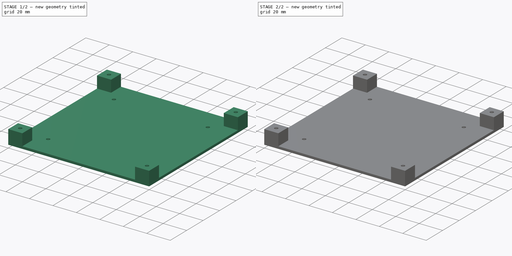
[diagram: build sequence overview — one tinted view per stage of 2, left to right]
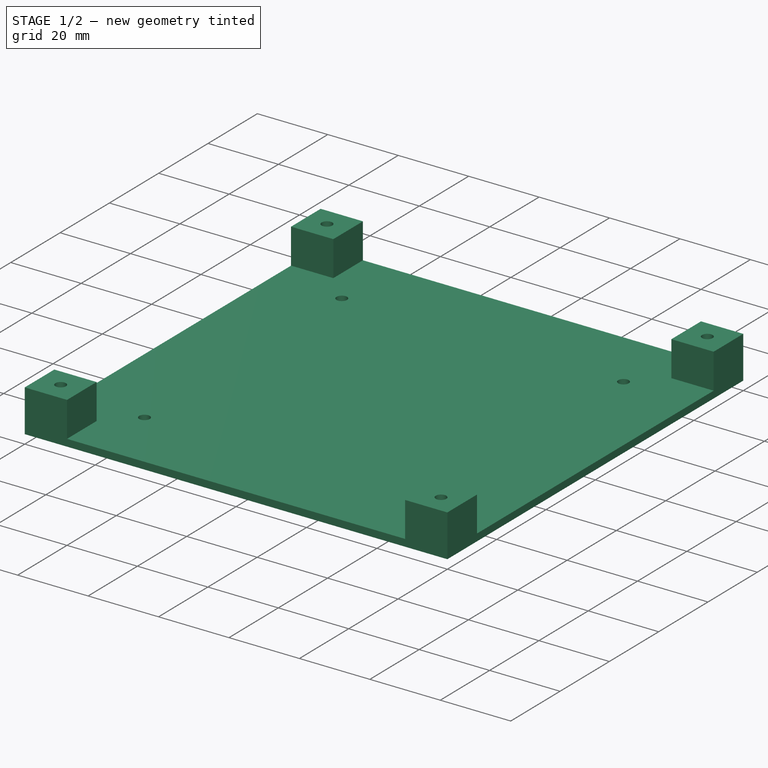
[diagram: stage 1 of 2 — iso view after this stage's code; geometry added in this stage tinted green]
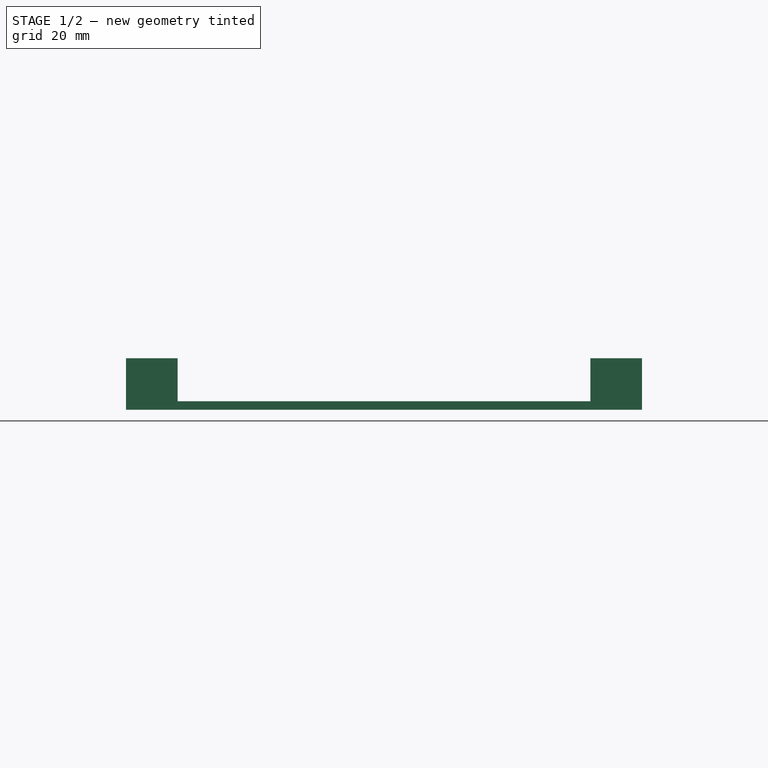
[diagram: stage 1 of 2 — front view after this stage's code; geometry added in this stage tinted green]
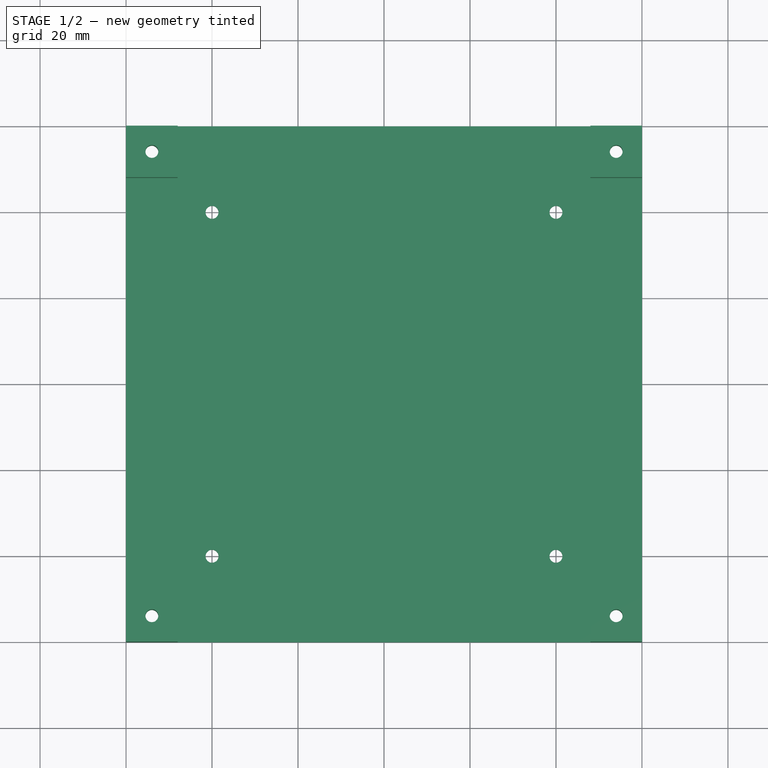
[diagram: stage 1 of 2 — top view after this stage's code; geometry added in this stage tinted green]
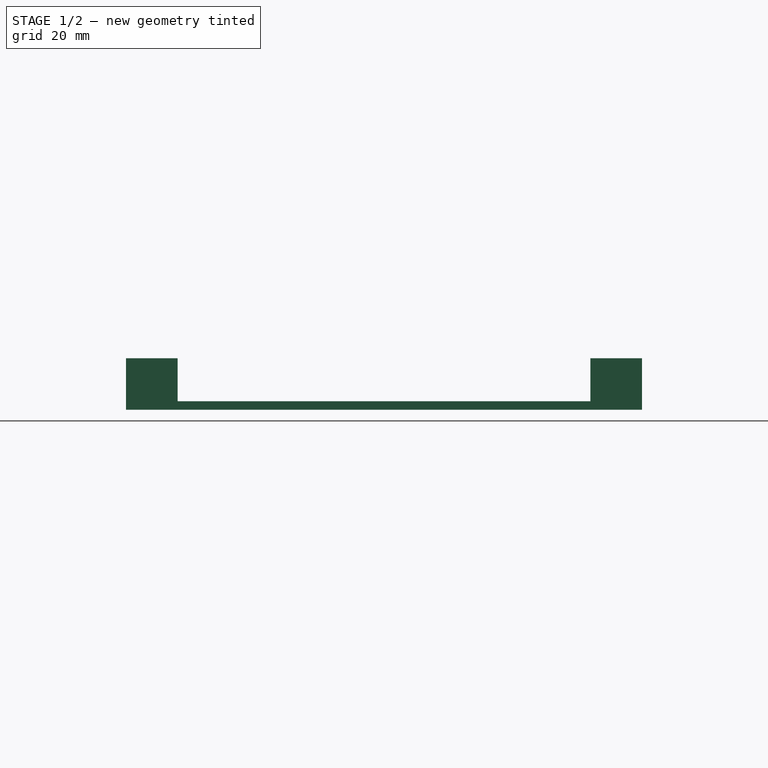
[diagram: stage 1 of 2 — right view after this stage's code; geometry added in this stage tinted green]
FCSTD DOCUMENT  (FreeCAD 0.21R33771 (Git))
Label: holder_120mm
License: All rights reserved
LicenseURL: http://en.wikipedia.org/wiki/All_rights_reserved
objects: Sketcher::SketchObject×3, PartDesign::Pad×2, PartDesign::Pocket×1, PartDesign::Body×1
note: 10 computed .brp shape members not serialized (recipe doc carries the construction recipe); baked Part::Feature solids carry a one-line shape summary decoded from their .brp

FEATURE [Sketcher::SketchObject] Sketch
  FullyConstrained = true
  MapMode = 5
  Support = -> [XY_Plane]
  sketch-geometry (13):
    g0: LineSegment StartX=-60 StartY=-60 StartZ=0 EndX=-60 EndY=60 EndZ=0
    g1: LineSegment StartX=-60 StartY=60 StartZ=0 EndX=60 EndY=60 EndZ=0
    g2: LineSegment StartX=60 StartY=60 StartZ=0 EndX=60 EndY=-60 EndZ=0
    g3: LineSegment StartX=60 StartY=-60 StartZ=0 EndX=-60 EndY=-60 EndZ=0
    g4: GeomPoint X=0 Y=0 Z=0
    g5: Circle CenterX=-40 CenterY=40 CenterZ=0 NormalX=0 NormalY=0 NormalZ=1 AngleXU=0 Radius=1.5
    g6: Circle CenterX=40 CenterY=40 CenterZ=0 NormalX=0 NormalY=0 NormalZ=1 AngleXU=0 Radius=1.5
    g7: Circle CenterX=40 CenterY=-40 CenterZ=0 NormalX=0 NormalY=0 NormalZ=1 AngleXU=0 Radius=1.5
    g8: Circle CenterX=-40 CenterY=-40 CenterZ=0 NormalX=0 NormalY=0 NormalZ=1 AngleXU=0 Radius=1.5
    g9: Circle CenterX=-54 CenterY=54 CenterZ=0 NormalX=0 NormalY=0 NormalZ=1 AngleXU=0 Radius=1.5
    g10: Circle CenterX=54 CenterY=54 CenterZ=0 NormalX=0 NormalY=0 NormalZ=1 AngleXU=0 Radius=1.5
    g11: Circle CenterX=54 CenterY=-54 CenterZ=0 NormalX=0 NormalY=0 NormalZ=1 AngleXU=0 Radius=1.5
    g12: Circle CenterX=-54 CenterY=-54 CenterZ=0 NormalX=0 NormalY=0 NormalZ=1 AngleXU=0 Radius=1.5
  constraints (36):
    c: Coincident(g0,g1)
    c: Coincident(g1,g2)
    c: Coincident(g2,g3)
    c: Coincident(g3,g0)
    c: Horizontal(g1)
    c: Horizontal(g3)
    c: Vertical(g0)
    c: Vertical(g2)
    c: Symmetric(g1,g0,g4)
    c: Coincident(g4,g-1)
    c: DistanceX(g1,g1) = 120
    c: DistanceY(g2,g2) = 120
    c: Diameter(g5) = 3
    c: Diameter(g6) = 3
    c: Diameter(g7) = 3
    c: Diameter(g8) = 3
    c: Distance(g8,g-2) = 40
    c: Distance(g5,g-2) = 40
    c: Distance(g6,g-2) = 40
    c: Distance(g7,g-2) = 40
    c: Distance(g7,g-1) = 40
    c: Distance(g6,g-1) = 40
    c: Distance(g5,g-1) = 40
    c: Distance(g8,g-1) = 40
    c: Diameter(g9) = 3
    c: Diameter(g10) = 3
    c: Diameter(g12) = 3
    c: Diameter(g11) = 3
    c: Distance(g9,g-1) = 54
    c: Distance(g9,g-2) = 54
    c: Distance(g10,g-1) = 54
    c: Distance(g10,g-2) = 54
    c: Distance(g11,g-1) = 54
    c: Distance(g11,g-2) = 54
    c: Distance(g12,g0) = 6
    c: Distance(g12,g3) = 6
FEATURE [PartDesign::Pad] Pad
  Direction = (0,0,1)
  Length = 2
  Length2 = 10
  Profile = -> Sketch
  ReferenceAxis = -> Sketch [N_Axis]
  Refine = true
  Type = 0
FEATURE [Sketcher::SketchObject] Sketch001
  FullyConstrained = true
  MapMode = 5
  Support = -> [XY_Plane]
  sketch-geometry (28):
    g0: LineSegment StartX=-52.375 StartY=51.1854 StartZ=0 EndX=-50.75 EndY=54 EndZ=0
    g1: LineSegment StartX=-50.75 StartY=54 StartZ=0 EndX=-52.375 EndY=56.8146 EndZ=0
    g2: LineSegment StartX=-52.375 StartY=56.8146 StartZ=0 EndX=-55.625 EndY=56.8146 EndZ=0
    g3: LineSegment StartX=-55.625 StartY=56.8146 StartZ=0 EndX=-57.25 EndY=54 EndZ=0
    g4: LineSegment StartX=-57.25 StartY=54 StartZ=0 EndX=-55.625 EndY=51.1854 EndZ=0
    g5: LineSegment StartX=-55.625 StartY=51.1854 StartZ=0 EndX=-52.375 EndY=51.1854 EndZ=0
    g6: Circle CenterX=-54 CenterY=54 CenterZ=0 NormalX=0 NormalY=0 NormalZ=1 AngleXU=0 Radius=3.25
    g7: LineSegment StartX=57.25 StartY=54 StartZ=0 EndX=55.625 EndY=56.8146 EndZ=0
    g8: LineSegment StartX=55.625 StartY=56.8146 StartZ=0 EndX=52.375 EndY=56.8146 EndZ=0
    g9: LineSegment StartX=52.375 StartY=56.8146 StartZ=0 EndX=50.75 EndY=54 EndZ=0
    g10: LineSegment StartX=50.75 StartY=54 StartZ=0 EndX=52.375 EndY=51.1854 EndZ=0
    g11: LineSegment StartX=52.375 StartY=51.1854 StartZ=0 EndX=55.625 EndY=51.1854 EndZ=0
    g12: LineSegment StartX=55.625 StartY=51.1854 StartZ=0 EndX=57.25 EndY=54 EndZ=0
    g13: Circle CenterX=54 CenterY=54 CenterZ=0 NormalX=0 NormalY=0 NormalZ=1 AngleXU=0 Radius=3.25
    g14: LineSegment StartX=-50.75 StartY=-54 StartZ=0 EndX=-52.375 EndY=-51.1854 EndZ=0
    g15: LineSegment StartX=-52.375 StartY=-51.1854 StartZ=0 EndX=-55.625 EndY=-51.1854 EndZ=0
    g16: LineSegment StartX=-55.625 StartY=-51.1854 StartZ=0 EndX=-57.25 EndY=-54 EndZ=0
    g17: LineSegment StartX=-57.25 StartY=-54 StartZ=0 EndX=-55.625 EndY=-56.8146 EndZ=0
    g18: LineSegment StartX=-55.625 StartY=-56.8146 StartZ=0 EndX=-52.375 EndY=-56.8146 EndZ=0
    g19: LineSegment StartX=-52.375 StartY=-56.8146 StartZ=0 EndX=-50.75 EndY=-54 EndZ=0
    g20: Circle CenterX=-54 CenterY=-54 CenterZ=0 NormalX=0 NormalY=0 NormalZ=1 AngleXU=0 Radius=3.25
    g21: LineSegment StartX=57.25 StartY=-54 StartZ=0 EndX=55.625 EndY=-51.1854 EndZ=0
    g22: LineSegment StartX=55.625 StartY=-51.1854 StartZ=0 EndX=52.375 EndY=-51.1854 EndZ=0
    g23: LineSegment StartX=52.375 StartY=-51.1854 StartZ=0 EndX=50.75 EndY=-54 EndZ=0
    g24: LineSegment StartX=50.75 StartY=-54 StartZ=0 EndX=52.375 EndY=-56.8146 EndZ=0
    g25: LineSegment StartX=52.375 StartY=-56.8146 StartZ=0 EndX=55.625 EndY=-56.8146 EndZ=0
    g26: LineSegment StartX=55.625 StartY=-56.8146 StartZ=0 EndX=57.25 EndY=-54 EndZ=0
    g27: Circle CenterX=54 CenterY=-54 CenterZ=0 NormalX=0 NormalY=0 NormalZ=1 AngleXU=0 Radius=3.25
  constraints (68):
    c: Coincident(g0,g1)
    c: Coincident(g1,g2)
    c: Coincident(g2,g3)
    c: Coincident(g3,g4)
    c: Coincident(g4,g5)
    c: Coincident(g5,g0)
    c: Equal(g0, g1-g5) x5
    c: PointOnObject(g0,g6)
    c: PointOnObject(g1,g6)
    c: PointOnObject(g2,g6)
    c: PointOnObject(g3,g6)
    c: PointOnObject(g4,g6)
    c: PointOnObject(g5,g6)
    c: Coincident(g7,g8)
    c: Coincident(g8,g9)
    c: Coincident(g9,g10)
    c: Coincident(g10,g11)
    c: Coincident(g11,g12)
    c: Coincident(g12,g7)
    c: Equal(g7, g8-g12) x5
    c: PointOnObject(g7,g13)
    c: PointOnObject(g8,g13)
    c: PointOnObject(g9,g13)
    c: PointOnObject(g10,g13)
    c: PointOnObject(g11,g13)
    c: PointOnObject(g12,g13)
    c: Diameter(g13) = 6.5
    c: Diameter(g6) = 6.5
    c: Horizontal(g5)
    c: Horizontal(g11)
    c: Distance(g6,g-2) = 54
    c: Distance(g6,g-1) = 54
    c: Distance(g13,g-1) = 54
    c: Distance(g13,g-2) = 54
    c: Coincident(g14,g15)
    c: Coincident(g15,g16)
    c: Coincident(g16,g17)
    c: Coincident(g17,g18)
    c: Coincident(g18,g19)
    c: Coincident(g19,g14)
    c: Equal(g14, g15-g19) x5
    c: PointOnObject(g14,g20)
    c: PointOnObject(g15,g20)
    c: PointOnObject(g16,g20)
    c: PointOnObject(g17,g20)
    c: PointOnObject(g18,g20)
    c: PointOnObject(g19,g20)
    c: Coincident(g21,g22)
    c: Coincident(g22,g23)
    c: Coincident(g23,g24)
    c: Coincident(g24,g25)
    c: Coincident(g25,g26)
    c: Coincident(g26,g21)
    c: Equal(g21, g22-g26) x5
    c: PointOnObject(g21,g27)
    c: PointOnObject(g22,g27)
    c: PointOnObject(g23,g27)
    c: PointOnObject(g24,g27)
    c: PointOnObject(g25,g27)
    c: PointOnObject(g26,g27)
    c: Diameter(g20) = 6.5
    c: Diameter(g27) = 6.5
    c: Horizontal(g18)
    c: Horizontal(g25)
    c: Distance(g27,g-2) = 54
    c: Distance(g27,g-1) = 54
    c: Distance(g20,g-2) = 54
    c: Distance(g20,g-1) = 54
FEATURE [Sketcher::SketchObject] Sketch002
  FullyConstrained = true
  MapMode = 5
  Support = -> [XY_Plane]
  sketch-geometry (24):
    g0: Circle CenterX=-54 CenterY=54 CenterZ=0 NormalX=0 NormalY=0 NormalZ=1 AngleXU=0 Radius=1.5
    g1: Circle CenterX=54 CenterY=54 CenterZ=0 NormalX=0 NormalY=0 NormalZ=1 AngleXU=0 Radius=1.5
    g2: Circle CenterX=54 CenterY=-54 CenterZ=0 NormalX=0 NormalY=0 NormalZ=1 AngleXU=0 Radius=1.5
    g3: Circle CenterX=-54 CenterY=-54 CenterZ=0 NormalX=0 NormalY=0 NormalZ=1 AngleXU=0 Radius=1.5
    g4: LineSegment StartX=-60 StartY=-60 StartZ=0 EndX=-60 EndY=-48 EndZ=0
    g5: LineSegment StartX=-60 StartY=-48 StartZ=0 EndX=-48 EndY=-48 EndZ=0
    g6: LineSegment StartX=-48 StartY=-48 StartZ=0 EndX=-48 EndY=-60 EndZ=0
    g7: LineSegment StartX=-48 StartY=-60 StartZ=0 EndX=-60 EndY=-60 EndZ=0
    g8: GeomPoint X=-54 Y=-54 Z=0
    g9: LineSegment StartX=48 StartY=-60 StartZ=0 EndX=48 EndY=-48 EndZ=0
    g10: LineSegment StartX=48 StartY=-48 StartZ=0 EndX=60 EndY=-48 EndZ=0
    g11: LineSegment StartX=60 StartY=-48 StartZ=0 EndX=60 EndY=-60 EndZ=0
    g12: LineSegment StartX=60 StartY=-60 StartZ=0 EndX=48 EndY=-60 EndZ=0
    g13: GeomPoint X=54 Y=-54 Z=0
    g14: LineSegment StartX=48 StartY=48 StartZ=0 EndX=48 EndY=60 EndZ=0
    g15: LineSegment StartX=48 StartY=60 StartZ=0 EndX=60 EndY=60 EndZ=0
    g16: LineSegment StartX=60 StartY=60 StartZ=0 EndX=60 EndY=48 EndZ=0
    g17: LineSegment StartX=60 StartY=48 StartZ=0 EndX=48 EndY=48 EndZ=0
    g18: GeomPoint X=54 Y=54 Z=0
    g19: LineSegment StartX=-60 StartY=48 StartZ=0 EndX=-60 EndY=60 EndZ=0
    g20: LineSegment StartX=-60 StartY=60 StartZ=0 EndX=-48 EndY=60 EndZ=0
    g21: LineSegment StartX=-48 StartY=60 StartZ=0 EndX=-48 EndY=48 EndZ=0
    g22: LineSegment StartX=-48 StartY=48 StartZ=0 EndX=-60 EndY=48 EndZ=0
    g23: GeomPoint X=-54 Y=54 Z=0
  constraints (60):
    c: Diameter(g0) = 3
    c: Diameter(g1) = 3
    c: Diameter(g2) = 3
    c: Diameter(g3) = 3
    c: Distance(g3,g-1) = 54
    c: Distance(g3,g-2) = 54
    c: Distance(g2,g-1) = 54
    c: Distance(g2,g-2) = 54
    c: Distance(g1,g-1) = 54
    c: Distance(g0,g-1) = 54
    c: Distance(g0,g-2) = 54
    c: Distance(g1,g-2) = 54
    c: Coincident(g4,g5)
    c: Coincident(g5,g6)
    c: Coincident(g6,g7)
    c: Coincident(g7,g4)
    c: Horizontal(g5)
    c: Horizontal(g7)
    c: Vertical(g4)
    c: Vertical(g6)
    c: Symmetric(g5,g4,g8)
    c: Coincident(g8,g3)
    c: Coincident(g9,g10)
    c: Coincident(g10,g11)
    c: Coincident(g11,g12)
    c: Coincident(g12,g9)
    c: Horizontal(g10)
    c: Horizontal(g12)
    c: Vertical(g9)
    c: Vertical(g11)
    c: Symmetric(g10,g9,g13)
    c: Coincident(g13,g2)
    c: Coincident(g14,g15)
    c: Coincident(g15,g16)
    c: Coincident(g16,g17)
    c: Coincident(g17,g14)
    c: Horizontal(g15)
    c: Horizontal(g17)
    c: Vertical(g14)
    c: Vertical(g16)
    c: Symmetric(g15,g14,g18)
    c: Coincident(g18,g1)
    c: Coincident(g19,g20)
    c: Coincident(g20,g21)
    c: Coincident(g21,g22)
    c: Coincident(g22,g19)
    c: Horizontal(g20)
    c: Horizontal(g22)
    c: Vertical(g19)
    c: Vertical(g21)
    c: Symmetric(g20,g19,g23)
    c: Coincident(g23,g0)
    c: DistanceX(g20,g20) = 12
    c: DistanceX(g10,g10) = 12
    c: DistanceY(g11,g11) = 12
    c: DistanceY(g6,g6) = 12
    c: DistanceY(g21,g21) = 12
    c: DistanceY(g14,g14) = 12
    c: DistanceX(g15,g15) = 12
    c: DistanceX(g7,g7) = 12
FEATURE [PartDesign::Pad] Pad001
  BaseFeature = -> Pad
  Direction = (0,0,1)
  Length = 12
  Length2 = 10
  Profile = -> Sketch002
  ReferenceAxis = -> Sketch002 [N_Axis]
  Refine = true
  Type = 0
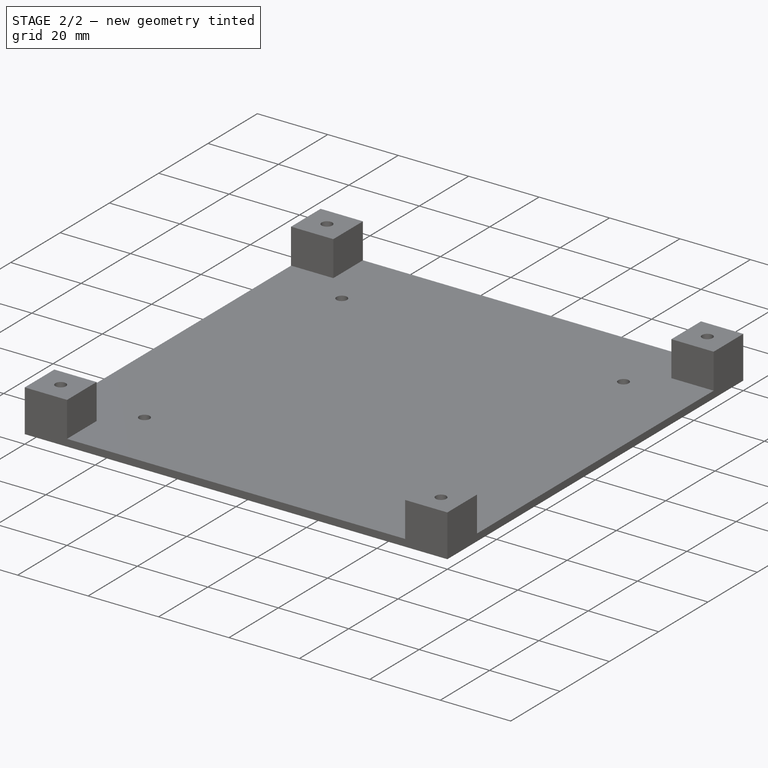
[diagram: stage 2 of 2 — iso view after this stage's code; geometry added in this stage tinted green]
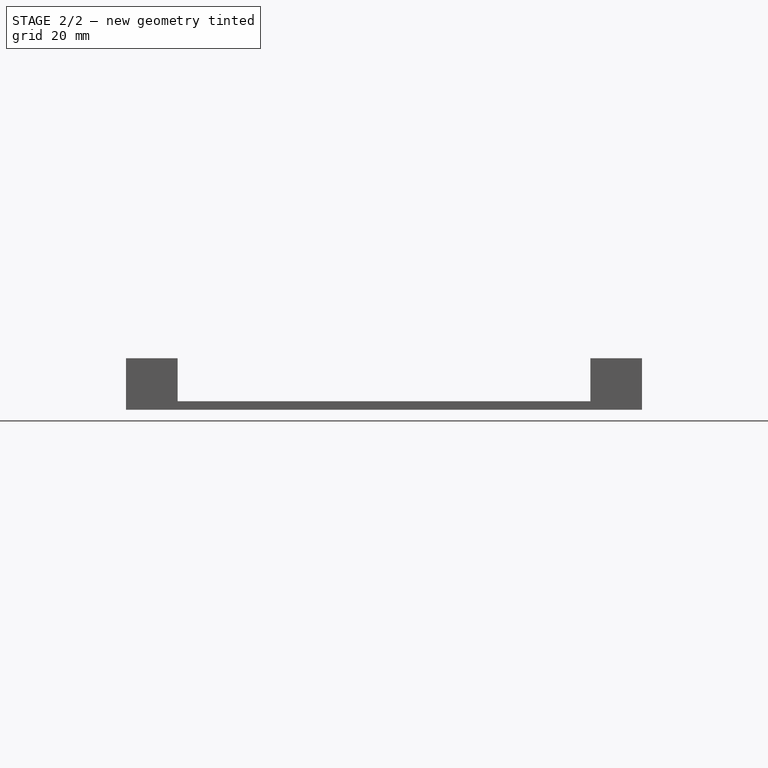
[diagram: stage 2 of 2 — front view after this stage's code; geometry added in this stage tinted green]
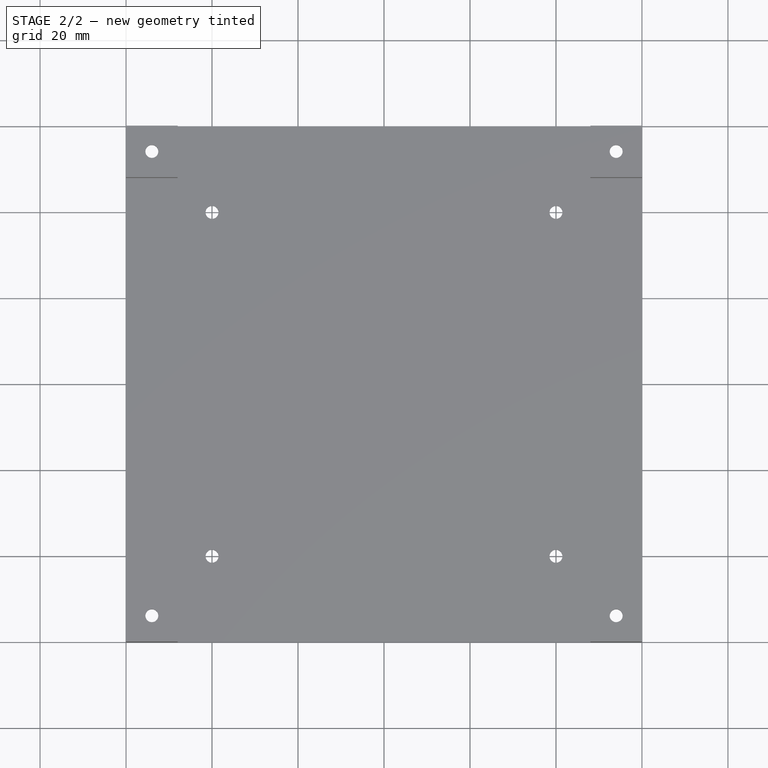
[diagram: stage 2 of 2 — top view after this stage's code; geometry added in this stage tinted green]
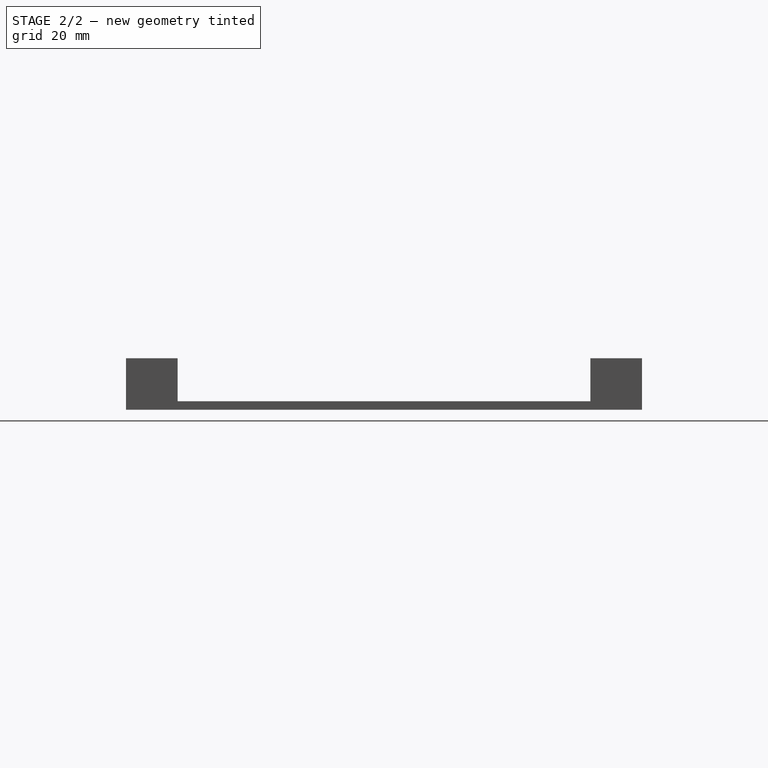
[diagram: stage 2 of 2 — right view after this stage's code; geometry added in this stage tinted green]
FEATURE [PartDesign::Pocket] Pocket
  BaseFeature = -> Pad001
  Direction = (0,0,-1)
  Length = 9
  Length2 = 5
  Profile = -> Sketch001
  ReferenceAxis = -> Sketch001 [N_Axis]
  Refine = true
  Reversed = true
  Type = 0
FEATURE [PartDesign::Body] Body
  Group = -> [Sketch,Pad,Sketch001,Sketch002,Pad001,Pocket]
  Origin = -> Origin
  Tip = -> Pocket
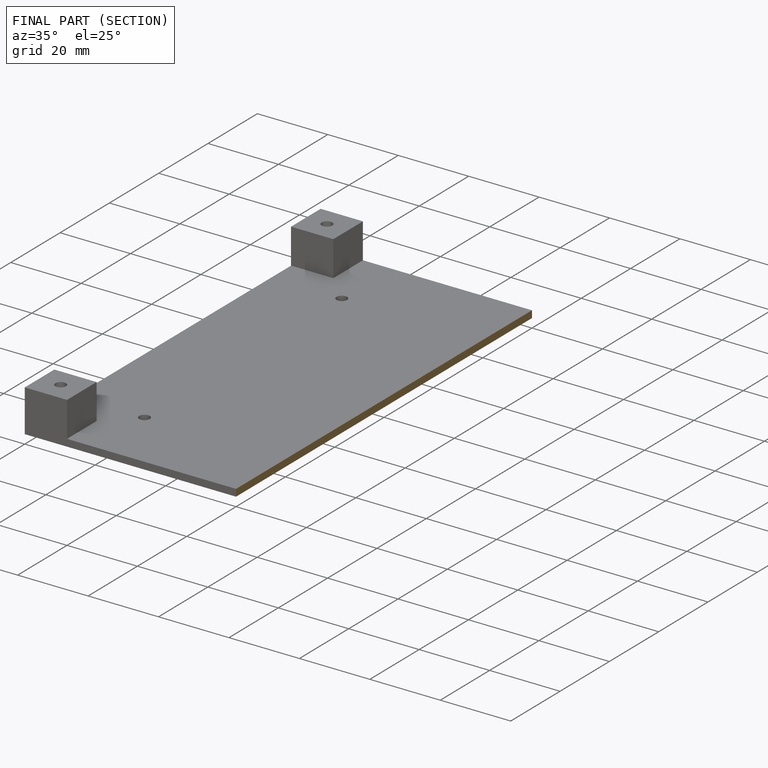
[diagram: finished part — half-section view (interior)]
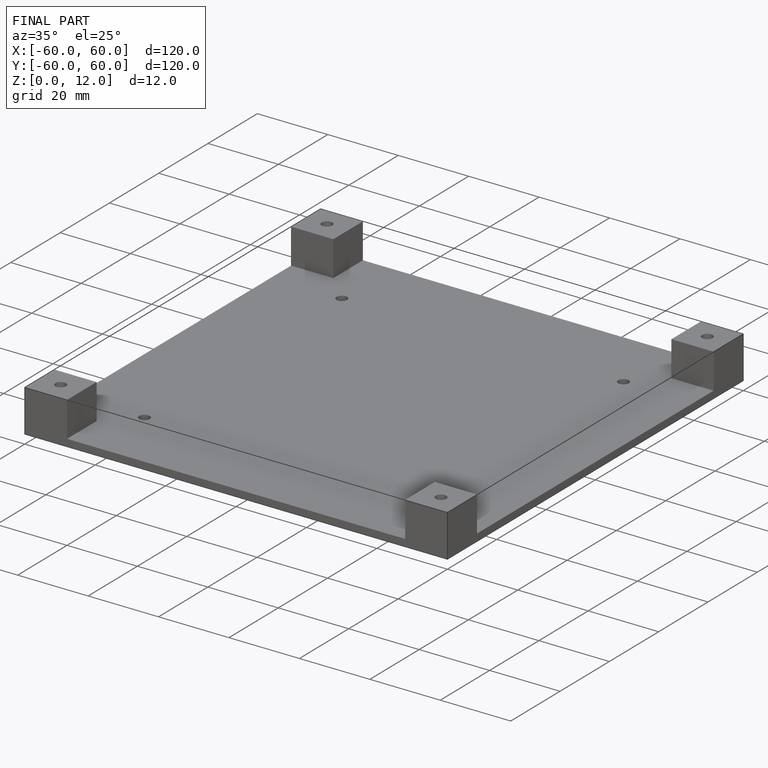
[diagram: finished part — iso view with bounding-box wireframe]
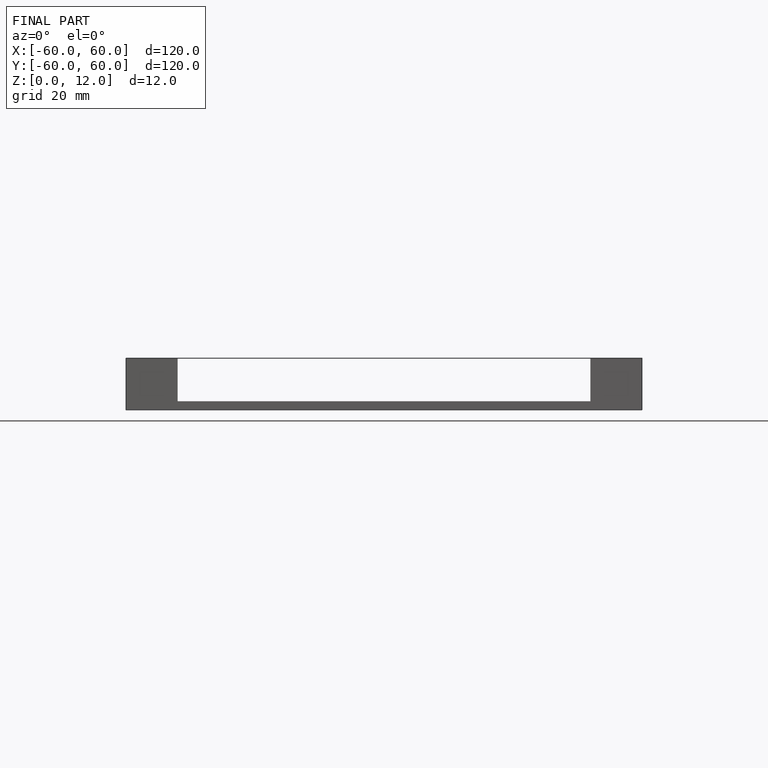
[diagram: finished part — front view with bounding-box wireframe]
